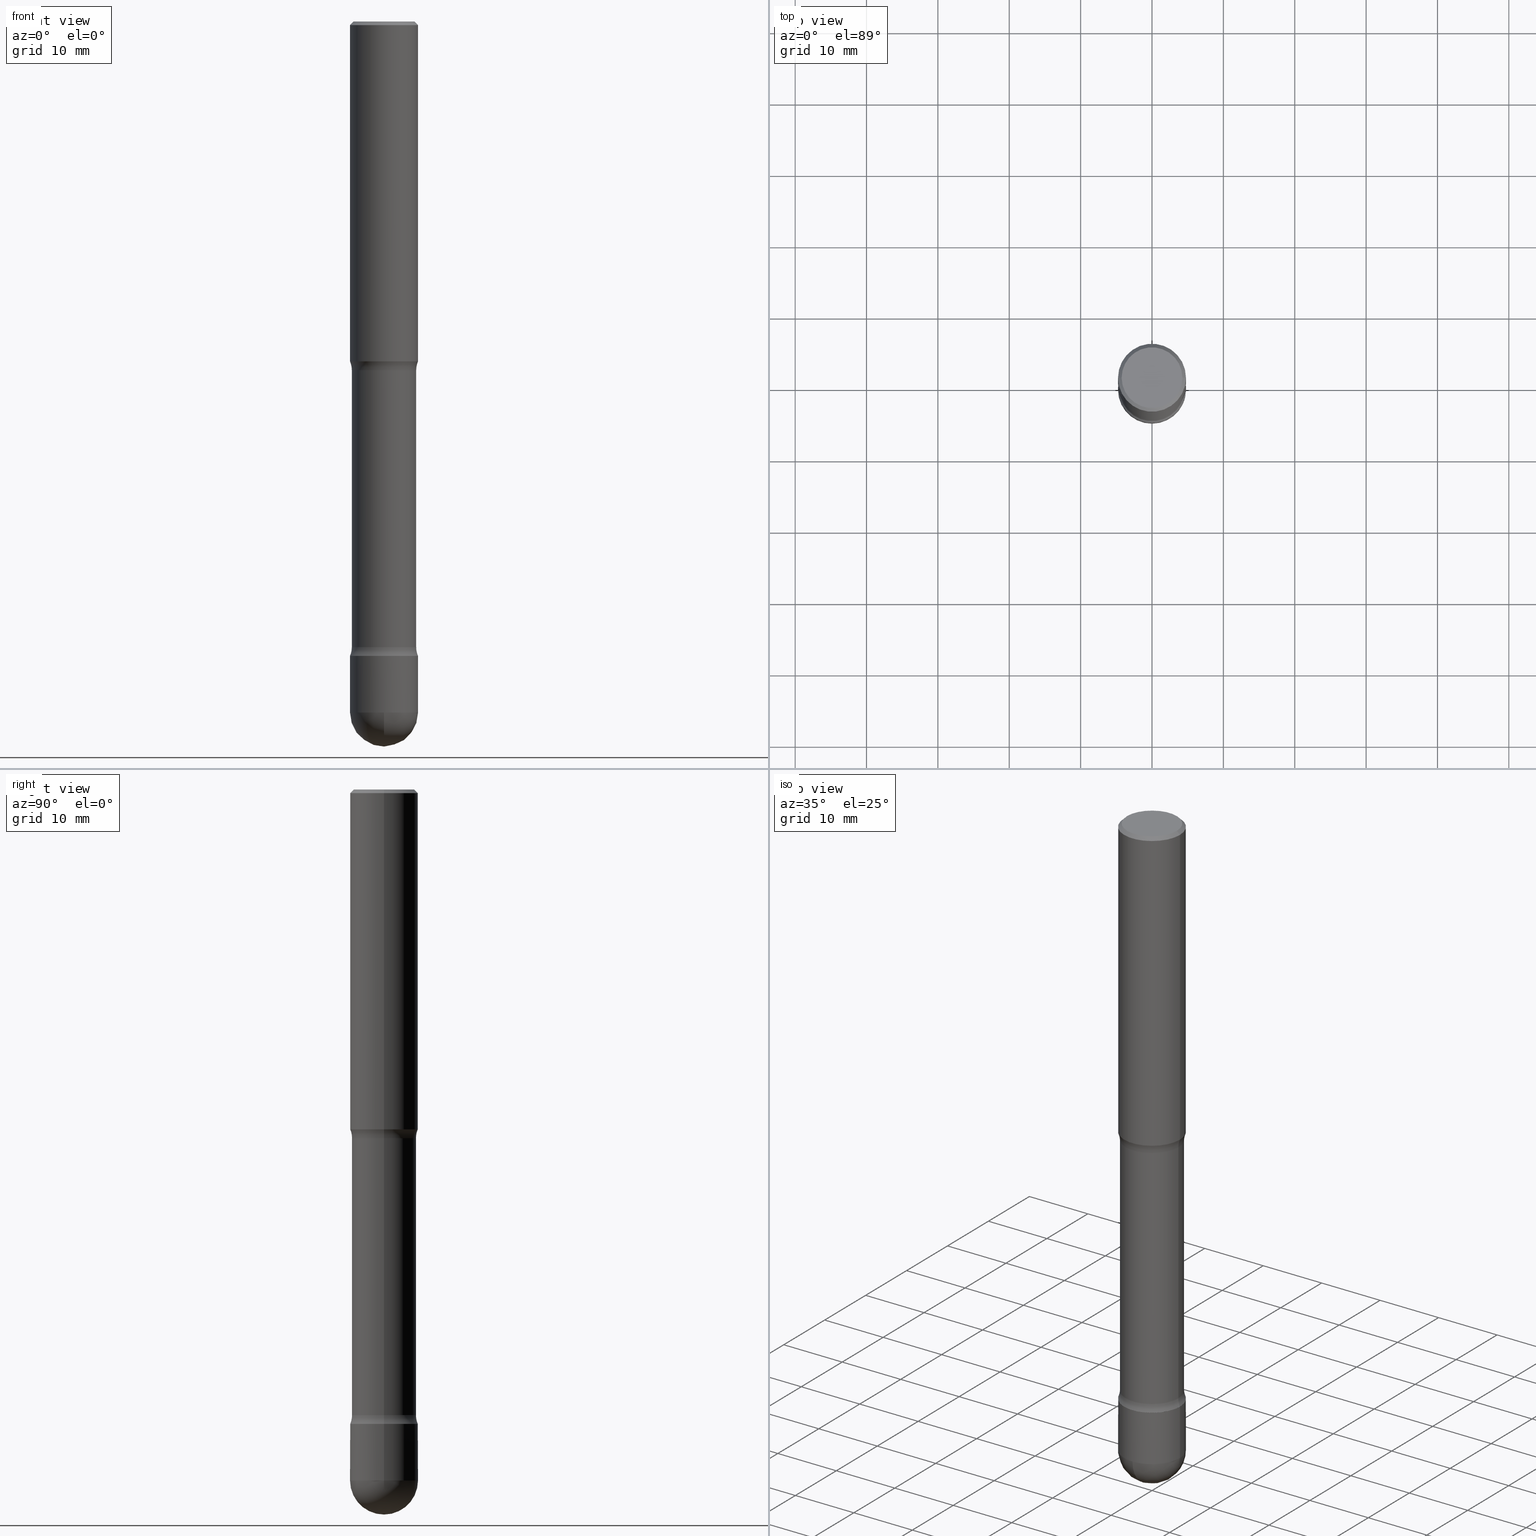
[diagram: canonical four-view strip — front | top / right | iso, engineering-drawing reading convention]
A machine part, canonical four-view strip (front | top / right | iso — engineering-drawing reading convention). The complete STEP part file that produces these views, byte-faithful:
ISO-10303-21;
HEADER;
FILE_DESCRIPTION (( 'STEP AP203' ),
    '1' );
FILE_NAME ('34944.STEP',
    '2024-02-29T19:23:34',
    ( '' ),
    ( '' ),
    'SwSTEP 2.0',
    'SolidWorks 2023',
    '' );
FILE_SCHEMA (( 'CONFIG_CONTROL_DESIGN' ));
ENDSEC;

DATA;
#1 = AXIS2_PLACEMENT_3D ( 'NONE', #479, #254, #519 ) ;
#2 = DIRECTION ( 'NONE',  ( -2.445468806185136597E-29, 3.491481338843145583E-15, 1.000000000000000000 ) ) ;
#3 = EDGE_LOOP ( 'NONE', ( #329, #7, #469, #181 ) ) ;
#4 = AXIS2_PLACEMENT_3D ( 'NONE', #85, #219, #262 ) ;
#5 = EDGE_CURVE ( 'NONE', #234, #528, #295, .T. ) ;
#6 = DIRECTION ( 'NONE',  ( -1.000000000000000000, 6.982962677686265133E-15, 0.000000000000000000 ) ) ;
#7 = ORIENTED_EDGE ( 'NONE', *, *, #277, .T. ) ;
#8 = DIRECTION ( 'NONE',  ( 2.445468806185136597E-29, -3.491481338843145583E-15, -1.000000000000000000 ) ) ;
#9 = ORIENTED_EDGE ( 'NONE', *, *, #511, .T. ) ;
#10 = DIRECTION ( 'NONE',  ( -1.000000000000000000, 6.982962677686265922E-15, -4.876176775795935793E-29 ) ) ;
#11 = AXIS2_PLACEMENT_3D ( 'NONE', #283, #417, #541 ) ;
#12 = ORIENTED_EDGE ( 'NONE', *, *, #270, .F. ) ;
#13 = PRODUCT_DEFINITION ( 'UNKNOWN', '', #439, #394 ) ;
#14 = CYLINDRICAL_SURFACE ( 'NONE', #38, 0.1874999999999999167 ) ;
#15 = DIRECTION ( 'NONE',  ( 1.000000000000000000, -6.982962677686265922E-15, 4.883557194083112340E-29 ) ) ;
#16 = EDGE_LOOP ( 'NONE', ( #189, #137, #482, #520 ) ) ;
#17 = APPLICATION_CONTEXT ( 'configuration controlled 3d designs of mechanical parts and assemblies' ) ;
#18 = CC_DESIGN_DATE_AND_TIME_ASSIGNMENT ( #34, #130, ( #144 ) ) ;
#19 = DIRECTION ( 'NONE',  ( -2.438088387897960049E-29, 3.491481338843145188E-15, 1.000000000000000000 ) ) ;
#20 = DIRECTION ( 'NONE',  ( -1.000000000000000000, 6.982962677686265922E-15, 0.000000000000000000 ) ) ;
#21 = AXIS2_PLACEMENT_3D ( 'NONE', #47, #364, #488 ) ;
#22 = CIRCLE ( 'NONE', #183, 0.1775000000000000189 ) ;
#23 = CARTESIAN_POINT ( 'NONE',  ( 4.705057026738065659E-29, -6.717574464863202053E-15, -1.923989794855663904 ) ) ;
#24 = CARTESIAN_POINT ( 'NONE',  ( 9.323349823580833275E-29, -1.331127260433949088E-14, -3.812500000000000000 ) ) ;
#25 = ADVANCED_FACE ( 'NONE', ( #422 ), #461, .T. ) ;
#26 = COORDINATED_UNIVERSAL_TIME_OFFSET ( 5, 0, .BEHIND. ) ;
#27 = FACE_OUTER_BOUND ( 'NONE', #276, .T. ) ;
#28 = ORIENTED_EDGE ( 'NONE', *, *, #231, .F. ) ;
#29 = EDGE_CURVE ( 'NONE', #340, #129, #374, .T. ) ;
#30 = CARTESIAN_POINT ( 'NONE',  ( 0.000000000000000000, 0.000000000000000000, 0.000000000000000000 ) ) ;
#31 = CIRCLE ( 'NONE', #499, 0.1875000000000000278 ) ;
#32 = DIRECTION ( 'NONE',  ( -2.445468806185136597E-29, 3.491481338843145583E-15, 1.000000000000000000 ) ) ;
#33 = EDGE_LOOP ( 'NONE', ( #445, #542, #146, #478 ) ) ;
#34 = DATE_AND_TIME ( #165, #325 ) ;
#35 = FACE_OUTER_BOUND ( 'NONE', #134, .T. ) ;
#36 = MANIFOLD_SOLID_BREP ( 'Body-Move/Copy2[1]', #532 ) ;
#37 = DIRECTION ( 'NONE',  ( -2.445468806185136597E-29, 3.491481338843145583E-15, 1.000000000000000000 ) ) ;
#38 = AXIS2_PLACEMENT_3D ( 'NONE', #108, #462, #20 ) ;
#39 = VERTEX_POINT ( 'NONE', #284 ) ;
#40 = CIRCLE ( 'NONE', #4, 0.1874999999999997780 ) ;
#41 = AXIS2_PLACEMENT_3D ( 'NONE', #30, #81, #465 ) ;
#42 = CARTESIAN_POINT ( 'NONE',  ( -0.1774999999999996025, -5.478098589573891921E-15, -1.923989794855663904 ) ) ;
#43 = DIRECTION ( 'NONE',  ( -1.000000000000000000, 6.982962677686269077E-15, 0.000000000000000000 ) ) ;
#44 = ORIENTED_EDGE ( 'NONE', *, *, #413, .F. ) ;
#45 = APPROVAL ( #560, 'UNSPECIFIED' ) ;
#46 = PERSON ( 'UNSPECIFIED', 'UNSPECIFIED', 'UNSPECIFIED', ('UNSPECIFIED'), ('UNSPECIFIED'), ('UNSPECIFIED') ) ;
#47 = CARTESIAN_POINT ( 'NONE',  ( 4.585254011597135603E-29, -6.546527510330903440E-15, -1.875000000000001776 ) ) ;
#48 = EDGE_LOOP ( 'NONE', ( #173, #362, #9, #495 ) ) ;
#49 = ADVANCED_FACE ( 'NONE', ( #548 ), #14, .T. ) ;
#50 = DIMENSIONAL_EXPONENTS ( 1.000000000000000000, 0.000000000000000000, 0.000000000000000000, 0.000000000000000000, 0.000000000000000000, 0.000000000000000000, 0.000000000000000000 ) ;
#51 = TOROIDAL_SURFACE ( 'NONE', #75, 0.3025000000000078182, 0.1250000000000078826 ) ;
#52 = ORIENTED_EDGE ( 'NONE', *, *, #416, .F. ) ;
#53 = DIRECTION ( 'NONE',  ( 2.445468806185136597E-29, -3.491481338843145583E-15, -1.000000000000000000 ) ) ;
#54 = VERTEX_POINT ( 'NONE', #540 ) ;
#55 = ADVANCED_FACE ( 'NONE', ( #498 ), #363, .F. ) ;
#56 = CARTESIAN_POINT ( 'NONE',  ( 8.559140821647976968E-29, -1.222018468595100934E-14, -3.500000000000000000 ) ) ;
#57 = ORIENTED_EDGE ( 'NONE', *, *, #70, .T. ) ;
#58 = FACE_OUTER_BOUND ( 'NONE', #517, .T. ) ;
#59 = ORGANIZATION ( 'UNSPECIFIED', 'UNSPECIFIED', '' ) ;
#60 = FACE_OUTER_BOUND ( 'NONE', #167, .T. ) ;
#61 = CARTESIAN_POINT ( 'NONE',  ( 9.859374669697428406E-29, -1.385494173919985124E-14, -4.000000000000000000 ) ) ;
#62 = EDGE_CURVE ( 'NONE', #105, #99, #333, .T. ) ;
#63 = DIRECTION ( 'NONE',  ( 1.000000000000000000, -6.982962677686265922E-15, 4.876176775795935793E-29 ) ) ;
#64 = ORIENTED_EDGE ( 'NONE', *, *, #110, .T. ) ;
#65 = CARTESIAN_POINT ( 'NONE',  ( -0.1874999999999997780, 1.239475875289311118E-15, -0.01999999999999978531 ) ) ;
#66 = CARTESIAN_POINT ( 'NONE',  ( 4.705057026738065659E-29, -6.717574464863202053E-15, -1.923989794855663904 ) ) ;
#67 = AXIS2_PLACEMENT_3D ( 'NONE', #533, #145, #43 ) ;
#68 = PERSON_AND_ORGANIZATION ( #46, #59 ) ;
#69 = DIRECTION ( 'NONE',  ( -1.000000000000000000, 6.982962677686266711E-15, -4.883557194083112340E-29 ) ) ;
#70 = EDGE_CURVE ( 'NONE', #123, #349, #113, .T. ) ;
#71 = DIRECTION ( 'NONE',  ( -1.000000000000000000, 6.982962677686269077E-15, 0.000000000000000000 ) ) ;
#72 = ORIENTED_EDGE ( 'NONE', *, *, #223, .T. ) ;
#73 = AXIS2_PLACEMENT_3D ( 'NONE', #203, #546, #502 ) ;
#74 = DIRECTION ( 'NONE',  ( -1.000000000000000000, 6.982962677686266711E-15, -4.883557194083112340E-29 ) ) ;
#75 = AXIS2_PLACEMENT_3D ( 'NONE', #237, #196, #169 ) ;
#76 = EDGE_LOOP ( 'NONE', ( #28, #375, #467, #316, #369 ) ) ;
#77 = AXIS2_PLACEMENT_3D ( 'NONE', #466, #291, #128 ) ;
#78 = AXIS2_PLACEMENT_3D ( 'NONE', #446, #53, #6 ) ;
#79 = CARTESIAN_POINT ( 'NONE',  ( 8.439337806507044109E-29, -1.204913773141870678E-14, -3.451010205144336762 ) ) ;
#80 = VERTEX_POINT ( 'NONE', #382 ) ;
#81 = DIRECTION ( 'NONE',  ( 0.000000000000000000, 0.000000000000000000, 1.000000000000000000 ) ) ;
#82 = FACE_OUTER_BOUND ( 'NONE', #76, .T. ) ;
#83 = CARTESIAN_POINT ( 'NONE',  ( 8.439337806507044109E-29, -1.204913773141870678E-14, -3.451010205144336762 ) ) ;
#84 = AXIS2_PLACEMENT_3D ( 'NONE', #330, #19, #63 ) ;
#85 = CARTESIAN_POINT ( 'NONE',  ( 4.890937612370220610E-31, -6.982962677686216421E-17, -0.01999999999999978531 ) ) ;
#86 = ORIENTED_EDGE ( 'NONE', *, *, #149, .F. ) ;
#87 = DIRECTION ( 'NONE',  ( -1.000000000000000000, 6.982962677686265133E-15, 0.000000000000000000 ) ) ;
#88 = ADVANCED_FACE ( 'NONE', ( #159 ), #353, .T. ) ;
#89 = ORIENTED_EDGE ( 'NONE', *, *, #235, .T. ) ;
#90 = CARTESIAN_POINT ( 'NONE',  ( 0.1874999999999999167, -1.350652806053316993E-14, -3.500000000000000000 ) ) ;
#91 = VERTEX_POINT ( 'NONE', #323 ) ;
#92 = TOROIDAL_SURFACE ( 'NONE', #419, 0.3025000000000078182, 0.1250000000000078826 ) ;
#93 = CIRCLE ( 'NONE', #216, 0.1249999999999882871 ) ;
#94 = FACE_OUTER_BOUND ( 'NONE', #227, .T. ) ;
#95 = ORIENTED_EDGE ( 'NONE', *, *, #228, .F. ) ;
#96 = AXIS2_PLACEMENT_3D ( 'NONE', #250, #245, #166 ) ;
#97 = CC_DESIGN_PERSON_AND_ORGANIZATION_ASSIGNMENT ( #514, #126, ( #144 ) ) ;
#98 = DIRECTION ( 'NONE',  ( -1.000000000000000000, 6.982962677686271444E-15, 0.000000000000000000 ) ) ;
#99 = VERTEX_POINT ( 'NONE', #243 ) ;
#100 = CYLINDRICAL_SURFACE ( 'NONE', #11, 0.1874999999999999167 ) ;
#101 = CARTESIAN_POINT ( 'NONE',  ( -0.1674999999999997602, 1.169646248512447820E-15, -8.167596099458180682E-30 ) ) ;
#102 = VECTOR ( 'NONE', #148, 39.37007874015748143 ) ;
#103 = DIRECTION ( 'NONE',  ( -1.000000000000000000, 6.860497997771528407E-15, 0.000000000000000000 ) ) ;
#104 = AXIS2_PLACEMENT_3D ( 'NONE', #547, #281, #326 ) ;
#105 = VERTEX_POINT ( 'NONE', #282 ) ;
#106 = VECTOR ( 'NONE', #309, 39.37007874015748143 ) ;
#107 = DIRECTION ( 'NONE',  ( -2.445468806185136597E-29, 3.491481338843145583E-15, 1.000000000000000000 ) ) ;
#108 = CARTESIAN_POINT ( 'NONE',  ( 8.559140821647976968E-29, -1.222018468595100934E-14, -3.500000000000000000 ) ) ;
#109 = EDGE_CURVE ( 'NONE', #54, #185, #114, .T. ) ;
#110 = EDGE_CURVE ( 'NONE', #484, #80, #457, .T. ) ;
#111 = CARTESIAN_POINT ( 'NONE',  ( 0.1873510749934464981, -1.350428058903573913E-14, -3.499648925006553224 ) ) ;
#112 = VERTEX_POINT ( 'NONE', #101 ) ;
#113 = CIRCLE ( 'NONE', #73, 0.1874999999999998335 ) ;
#114 = CIRCLE ( 'NONE', #523, 0.1874999999999996669 ) ;
#115 =( NAMED_UNIT ( * ) SI_UNIT ( $, .STERADIAN. ) SOLID_ANGLE_UNIT ( ) );
#116 = DIRECTION ( 'NONE',  ( -1.000000000000000000, 6.982962677686269077E-15, 0.000000000000000000 ) ) ;
#117 = CC_DESIGN_PERSON_AND_ORGANIZATION_ASSIGNMENT ( #68, #383, ( #480 ) ) ;
#118 = FACE_OUTER_BOUND ( 'NONE', #453, .T. ) ;
#119 = ORIENTED_EDGE ( 'NONE', *, *, #70, .F. ) ;
#120 = COORDINATED_UNIVERSAL_TIME_OFFSET ( 5, 0, .BEHIND. ) ;
#121 = DIRECTION ( 'NONE',  ( 2.445468806185136597E-29, -3.491481338843145583E-15, -1.000000000000000000 ) ) ;
#122 = APPROVAL ( #303, 'UNSPECIFIED' ) ;
#123 = VERTEX_POINT ( 'NONE', #61 ) ;
#124 = VECTOR ( 'NONE', #140, 39.37007874015748143 ) ;
#125 = AXIS2_PLACEMENT_3D ( 'NONE', #194, #558, #516 ) ;
#126 = PERSON_AND_ORGANIZATION_ROLE ( 'classification_officer' ) ;
#127 = VECTOR ( 'NONE', #351, 39.37007874015748143 ) ;
#128 = DIRECTION ( 'NONE',  ( 6.982962677686265922E-15, 1.000000000000000000, -2.913971193241883133E-15 ) ) ;
#129 = VERTEX_POINT ( 'NONE', #279 ) ;
#130 = DATE_TIME_ROLE ( 'classification_date' ) ;
#131 = DIRECTION ( 'NONE',  ( -6.982962677686266711E-15, -1.000000000000000000, 3.491481338843145583E-15 ) ) ;
#132 = EDGE_LOOP ( 'NONE', ( #306, #492 ) ) ;
#133 = DIRECTION ( 'NONE',  ( 2.445468806185136597E-29, -3.491481338843145583E-15, -1.000000000000000000 ) ) ;
#134 = EDGE_LOOP ( 'NONE', ( #141, #418, #486, #313 ) ) ;
#135 = ADVANCED_FACE ( 'NONE', ( #60 ), #51, .F. ) ;
#136 = DIRECTION ( 'NONE',  ( -0.7071067811868226860, 7.493145998871348125E-15, 0.7071067811862723484 ) ) ;
#137 = ORIENTED_EDGE ( 'NONE', *, *, #5, .F. ) ;
#138 = CARTESIAN_POINT ( 'NONE',  ( -0.1869999999999996387, -1.089146977007962318E-14, -3.500000000000000000 ) ) ;
#139 = EDGE_LOOP ( 'NONE', ( #269, #207, #258, #232 ) ) ;
#140 = DIRECTION ( 'NONE',  ( 2.445468806185136877E-29, -3.491481338843145188E-15, -1.000000000000000000 ) ) ;
#141 = ORIENTED_EDGE ( 'NONE', *, *, #328, .F. ) ;
#142 = AXIS2_PLACEMENT_3D ( 'NONE', #66, #464, #116 ) ;
#143 = CIRCLE ( 'NONE', #534, 0.1674999999999997602 ) ;
#144 = SECURITY_CLASSIFICATION ( '', '', #335 ) ;
#145 = DIRECTION ( 'NONE',  ( 2.445468806185136597E-29, -3.491481338843145583E-15, -1.000000000000000000 ) ) ;
#146 = ORIENTED_EDGE ( 'NONE', *, *, #218, .T. ) ;
#147 = DIRECTION ( 'NONE',  ( 6.860497997771531562E-15, 1.000000000000000000, -3.491481338843145583E-15 ) ) ;
#148 = DIRECTION ( 'NONE',  ( 2.445468806185136877E-29, -3.491481338843145188E-15, -1.000000000000000000 ) ) ;
#149 = EDGE_CURVE ( 'NONE', #192, #311, #386, .T. ) ;
#150 = DIRECTION ( 'NONE',  ( 1.000000000000000000, -6.982962677686265133E-15, 0.000000000000000000 ) ) ;
#151 = DIRECTION ( 'NONE',  ( 1.000000000000000000, -6.982962677686268288E-15, 0.000000000000000000 ) ) ;
#152 = ADVANCED_FACE ( 'NONE', ( #82 ), #172, .T. ) ;
#153 = CARTESIAN_POINT ( 'NONE',  ( -0.1774999999999998246, -1.098070881066169763E-14, -3.500000000000000000 ) ) ;
#154 = CIRCLE ( 'NONE', #249, 0.1874999999999996392 ) ;
#155 = CIRCLE ( 'NONE', #437, 0.1873510749934465536 ) ;
#156 = DIRECTION ( 'NONE',  ( 1.000000000000000000, -6.982962677686273021E-15, 0.000000000000000000 ) ) ;
#157 = CIRCLE ( 'NONE', #253, 0.1874999999999997780 ) ;
#158 = CARTESIAN_POINT ( 'NONE',  ( 1.305814020727414831E-15, 0.1869999999999874263, -3.500000000000000444 ) ) ;
#159 = FACE_OUTER_BOUND ( 'NONE', #443, .T. ) ;
#160 = ADVANCED_BREP_SHAPE_REPRESENTATION ( '34944', ( #36, #236, #41 ), #190 ) ;
#161 = CARTESIAN_POINT ( 'NONE',  ( 4.890937612370220610E-31, -6.982962677686216421E-17, -0.01999999999999978531 ) ) ;
#162 = APPROVAL_DATE_TIME ( #476, #45 ) ;
#163 = DIRECTION ( 'NONE',  ( 1.000000000000000000, -6.982962677686268288E-15, 0.000000000000000000 ) ) ;
#164 = LOCAL_TIME ( 14, 23, 34.00000000000000000, #256 ) ;
#165 = CALENDAR_DATE ( 2024, 29, 2 ) ;
#166 = DIRECTION ( 'NONE',  ( -1.000000000000000000, 6.982962677686265922E-15, 0.000000000000000000 ) ) ;
#167 = EDGE_LOOP ( 'NONE', ( #553, #263, #187, #504 ) ) ;
#168 = EDGE_CURVE ( 'NONE', #129, #440, #22, .T. ) ;
#169 = DIRECTION ( 'NONE',  ( -1.000000000000000000, 6.982962677686267499E-15, -4.883557194083113462E-29 ) ) ;
#170 = CALENDAR_DATE ( 2024, 29, 2 ) ;
#171 = ADVANCED_FACE ( 'NONE', ( #118 ), #436, .T. ) ;
#172 = CYLINDRICAL_SURFACE ( 'NONE', #356, 0.1874999999999996392 ) ;
#173 = ORIENTED_EDGE ( 'NONE', *, *, #62, .F. ) ;
#174 = CIRCLE ( 'NONE', #489, 0.1869999999999996387 ) ;
#175 = LOCAL_TIME ( 14, 23, 34.00000000000000000, #435 ) ;
#176 = PERSON_AND_ORGANIZATION_ROLE ( 'creator' ) ;
#177 = CYLINDRICAL_SURFACE ( 'NONE', #543, 0.1874999999999996392 ) ;
#178 = LINE ( 'NONE', #90, #106 ) ;
#179 = ADVANCED_FACE ( 'NONE', ( #27 ), #346, .T. ) ;
#180 = DIRECTION ( 'NONE',  ( 1.000000000000000000, -6.982962677686265133E-15, 0.000000000000000000 ) ) ;
#181 = ORIENTED_EDGE ( 'NONE', *, *, #377, .F. ) ;
#182 = APPROVAL_PERSON_ORGANIZATION ( #300, #122, #296 ) ;
#183 = AXIS2_PLACEMENT_3D ( 'NONE', #79, #477, #425 ) ;
#184 = CARTESIAN_POINT ( 'NONE',  ( -0.1869999999999996387, -1.088960961525404312E-14, -3.500000000000000000 ) ) ;
#185 = VERTEX_POINT ( 'NONE', #293 ) ;
#186 = CARTESIAN_POINT ( 'NONE',  ( 8.559140821647976968E-29, -1.222018468595100934E-14, -3.500000000000000000 ) ) ;
#187 = ORIENTED_EDGE ( 'NONE', *, *, #29, .T. ) ;
#188 = CARTESIAN_POINT ( 'NONE',  ( 8.439337806507040746E-29, -1.204913773141870205E-14, -3.451010205144335430 ) ) ;
#189 = ORIENTED_EDGE ( 'NONE', *, *, #475, .F. ) ;
#190 =( GEOMETRIC_REPRESENTATION_CONTEXT ( 3 ) GLOBAL_UNCERTAINTY_ASSIGNED_CONTEXT ( ( #317 ) ) GLOBAL_UNIT_ASSIGNED_CONTEXT ( ( #239, #378, #115 ) ) REPRESENTATION_CONTEXT ( 'NONE', 'WORKASPACE' ) );
#191 = CARTESIAN_POINT ( 'NONE',  ( 8.559140821647976968E-29, -1.222018468595100934E-14, -3.500000000000000000 ) ) ;
#192 = VERTEX_POINT ( 'NONE', #344 ) ;
#193 = CARTESIAN_POINT ( 'NONE',  ( 9.323349823580833275E-29, -1.331127260433949088E-14, -3.812500000000000000 ) ) ;
#194 = CARTESIAN_POINT ( 'NONE',  ( 8.559140821647976968E-29, -1.222018468595100934E-14, -3.500000000000000000 ) ) ;
#195 = ADVANCED_FACE ( 'NONE', ( #342 ), #177, .T. ) ;
#196 = DIRECTION ( 'NONE',  ( 2.445468806185136597E-29, -3.491481338843145583E-15, -1.000000000000000000 ) ) ;
#197 = AXIS2_PLACEMENT_3D ( 'NONE', #161, #415, #506 ) ;
#198 = DIRECTION ( 'NONE',  ( -0.7071067811865516806, 2.468850131082300448E-15, -0.7071067811865433539 ) ) ;
#199 = CIRCLE ( 'NONE', #287, 0.1249999999999882871 ) ;
#200 = AXIS2_PLACEMENT_3D ( 'NONE', #191, #494, #501 ) ;
#201 = DIRECTION ( 'NONE',  ( -2.445468806185136597E-29, 3.491481338843145583E-15, 1.000000000000000000 ) ) ;
#202 = CC_DESIGN_PERSON_AND_ORGANIZATION_ASSIGNMENT ( #518, #343, ( #439 ) ) ;
#203 = CARTESIAN_POINT ( 'NONE',  ( 9.392832084576658456E-29, -1.321177005190876857E-14, -3.812500000000000000 ) ) ;
#204 = DIRECTION ( 'NONE',  ( -2.445468806185136597E-29, 3.491481338843145583E-15, 1.000000000000000000 ) ) ;
#205 = CALENDAR_DATE ( 2024, 29, 2 ) ;
#206 = CARTESIAN_POINT ( 'NONE',  ( 4.585254011597135603E-29, -6.546527510330903440E-15, -1.875000000000001776 ) ) ;
#207 = ORIENTED_EDGE ( 'NONE', *, *, #334, .T. ) ;
#208 = PERSON_AND_ORGANIZATION ( #46, #59 ) ;
#209 = CARTESIAN_POINT ( 'NONE',  ( -0.1874999999999996392, 1.332267629550185285E-15, -9.223003294227931175E-30 ) ) ;
#210 = ORIENTED_EDGE ( 'NONE', *, *, #475, .T. ) ;
#211 = ADVANCED_FACE ( 'NONE', ( #434 ), #396, .T. ) ;
#212 = CYLINDRICAL_SURFACE ( 'NONE', #96, 0.1774999999999998246 ) ;
#213 = MECHANICAL_CONTEXT ( 'NONE', #357, 'mechanical' ) ;
#214 = ORIENTED_EDGE ( 'NONE', *, *, #310, .F. ) ;
#215 = AXIS2_PLACEMENT_3D ( 'NONE', #301, #556, #468 ) ;
#216 = AXIS2_PLACEMENT_3D ( 'NONE', #410, #147, #103 ) ;
#217 = DIRECTION ( 'NONE',  ( 2.445468806185136597E-29, -3.491481338843145583E-15, -1.000000000000000000 ) ) ;
#218 = EDGE_CURVE ( 'NONE', #440, #129, #222, .T. ) ;
#219 = DIRECTION ( 'NONE',  ( 2.445468806185136597E-29, -3.491481338843145583E-15, -1.000000000000000000 ) ) ;
#220 = ORIENTED_EDGE ( 'NONE', *, *, #109, .F. ) ;
#221 = ORIENTED_EDGE ( 'NONE', *, *, #442, .T. ) ;
#222 = CIRCLE ( 'NONE', #447, 0.1775000000000000189 ) ;
#223 = EDGE_CURVE ( 'NONE', #112, #105, #367, .T. ) ;
#224 = CC_DESIGN_APPROVAL ( #45, ( #439 ) ) ;
#225 = CIRCLE ( 'NONE', #470, 0.1874999999999996392 ) ;
#226 = DIRECTION ( 'NONE',  ( -1.000000000000000000, 6.982962677686265922E-15, -4.883557194083112901E-29 ) ) ;
#227 = EDGE_LOOP ( 'NONE', ( #355, #57, #365, #12 ) ) ;
#228 = EDGE_CURVE ( 'NONE', #234, #80, #199, .T. ) ;
#229 = CARTESIAN_POINT ( 'NONE',  ( 0.1774999999999998246, -1.343792308055545500E-14, -3.500000000000000000 ) ) ;
#230 = EDGE_LOOP ( 'NONE', ( #404, #537, #565, #246 ) ) ;
#231 = EDGE_CURVE ( 'NONE', #531, #91, #260, .T. ) ;
#232 = ORIENTED_EDGE ( 'NONE', *, *, #110, .F. ) ;
#233 = PLANE ( 'NONE',  #412 ) ;
#234 = VERTEX_POINT ( 'NONE', #42 ) ;
#235 = EDGE_CURVE ( 'NONE', #39, #80, #31, .T. ) ;
#236 = MANIFOLD_SOLID_BREP ( 'Body-Move/Copy2[2]', #352 ) ;
#237 = CARTESIAN_POINT ( 'NONE',  ( 8.439337806507040746E-29, -1.204913773141870205E-14, -3.451010205144335430 ) ) ;
#238 = ORIENTED_EDGE ( 'NONE', *, *, #109, .T. ) ;
#239 =( CONVERSION_BASED_UNIT ( 'INCH', #505 ) LENGTH_UNIT ( ) NAMED_UNIT ( #50 ) );
#240 = CIRCLE ( 'NONE', #559, 0.1873510749934465536 ) ;
#241 = ORIENTED_EDGE ( 'NONE', *, *, #235, .F. ) ;
#242 = DATE_TIME_ROLE ( 'creation_date' ) ;
#243 = CARTESIAN_POINT ( 'NONE',  ( 0.1874999999999997780, -1.356173001359022705E-15, -0.01999999999999978531 ) ) ;
#244 = APPROVAL_DATE_TIME ( #549, #302 ) ;
#245 = DIRECTION ( 'NONE',  ( 2.445468806185136597E-29, -3.491481338843145583E-15, -1.000000000000000000 ) ) ;
#246 = ORIENTED_EDGE ( 'NONE', *, *, #554, .F. ) ;
#247 = AXIS2_PLACEMENT_3D ( 'NONE', #286, #201, #151 ) ;
#248 = SHAPE_DEFINITION_REPRESENTATION ( #264, #160 ) ;
#249 = AXIS2_PLACEMENT_3D ( 'NONE', #430, #32, #390 ) ;
#250 = CARTESIAN_POINT ( 'NONE',  ( 8.559140821647976968E-29, -1.222018468595100934E-14, -3.500000000000000000 ) ) ;
#251 = CC_DESIGN_SECURITY_CLASSIFICATION ( #144, ( #439 ) ) ;
#252 = ADVANCED_FACE ( 'NONE', ( #507 ), #463, .F. ) ;
#253 = AXIS2_PLACEMENT_3D ( 'NONE', #563, #275, #87 ) ;
#254 = DIRECTION ( 'NONE',  ( 2.445468806185136597E-29, -3.491481338843145583E-15, -1.000000000000000000 ) ) ;
#255 = ORIENTED_EDGE ( 'NONE', *, *, #358, .T. ) ;
#256 = COORDINATED_UNIVERSAL_TIME_OFFSET ( 5, 0, .BEHIND. ) ;
#257 = CARTESIAN_POINT ( 'NONE',  ( 0.000000000000000000, 0.000000000000000000, 0.000000000000000000 ) ) ;
#258 = ORIENTED_EDGE ( 'NONE', *, *, #273, .F. ) ;
#259 = ADVANCED_FACE ( 'NONE', ( #35 ), #212, .T. ) ;
#260 = LINE ( 'NONE', #209, #271 ) ;
#261 = AXIS2_PLACEMENT_3D ( 'NONE', #193, #107, #150 ) ;
#262 = DIRECTION ( 'NONE',  ( -1.000000000000000000, 6.982962677686265133E-15, 0.000000000000000000 ) ) ;
#263 = ORIENTED_EDGE ( 'NONE', *, *, #455, .F. ) ;
#264 = PRODUCT_DEFINITION_SHAPE ( 'NONE', 'NONE',  #13 ) ;
#265 = LINE ( 'NONE', #452, #127 ) ;
#266 = ORIENTED_EDGE ( 'NONE', *, *, #334, .F. ) ;
#267 = EDGE_CURVE ( 'NONE', #91, #427, #154, .T. ) ;
#268 = CARTESIAN_POINT ( 'NONE',  ( -0.1873510749934464981, -1.091069334985921751E-14, -3.499648925006553224 ) ) ;
#269 = ORIENTED_EDGE ( 'NONE', *, *, #433, .T. ) ;
#270 = EDGE_CURVE ( 'NONE', #185, #531, #324, .T. ) ;
#271 = VECTOR ( 'NONE', #438, 39.37007874015748143 ) ;
#272 = DIRECTION ( 'NONE',  ( 6.982962677686265922E-15, 1.000000000000000000, -2.913971193241883133E-15 ) ) ;
#273 = EDGE_CURVE ( 'NONE', #80, #39, #421, .T. ) ;
#274 = ORIENTED_EDGE ( 'NONE', *, *, #433, .F. ) ;
#275 = DIRECTION ( 'NONE',  ( 2.445468806185136597E-29, -3.491481338843145583E-15, -1.000000000000000000 ) ) ;
#276 = EDGE_LOOP ( 'NONE', ( #388, #86, #522, #400 ) ) ;
#277 = EDGE_CURVE ( 'NONE', #311, #340, #361, .T. ) ;
#278 = DIRECTION ( 'NONE',  ( 2.445468806185136877E-29, -3.491481338843145188E-15, -1.000000000000000000 ) ) ;
#279 = CARTESIAN_POINT ( 'NONE',  ( -0.1775000000000000189, -1.080966185612939350E-14, -3.451010205144336762 ) ) ;
#280 = LOCAL_TIME ( 14, 23, 34.00000000000000000, #26 ) ;
#281 = DIRECTION ( 'NONE',  ( 6.860497997771531562E-15, 1.000000000000000000, -3.491481338843145583E-15 ) ) ;
#282 = CARTESIAN_POINT ( 'NONE',  ( 0.1674999999999997602, -1.252653207992876119E-15, 8.469775550109225372E-30 ) ) ;
#283 = CARTESIAN_POINT ( 'NONE',  ( 8.559140821647976968E-29, -1.222018468595100934E-14, -3.500000000000000000 ) ) ;
#284 = CARTESIAN_POINT ( 'NONE',  ( 0.1874999999999999722, -4.594521943136043171E-15, -1.875000000000001776 ) ) ;
#285 = LINE ( 'NONE', #153, #551 ) ;
#286 = CARTESIAN_POINT ( 'NONE',  ( 8.559140821647976968E-29, -1.222018468595100934E-14, -3.500000000000000000 ) ) ;
#287 = AXIS2_PLACEMENT_3D ( 'NONE', #473, #131, #304 ) ;
#288 = LOCAL_TIME ( 14, 23, 34.00000000000000000, #423 ) ;
#289 = CARTESIAN_POINT ( 'NONE',  ( -0.3025000000000078182, -9.936791521418551783E-15, -3.451010205144335430 ) ) ;
#290 = PERSON_AND_ORGANIZATION ( #46, #59 ) ;
#291 = DIRECTION ( 'NONE',  ( -1.000000000000000000, 6.982962677686265922E-15, -4.883557194083112901E-29 ) ) ;
#292 = ADVANCED_FACE ( 'NONE', ( #94 ), #402, .T. ) ;
#293 = CARTESIAN_POINT ( 'NONE',  ( 1.309305502066266713E-15, 0.1874999999999864830, -3.812500000000000444 ) ) ;
#294 = ORIENTED_EDGE ( 'NONE', *, *, #149, .T. ) ;
#295 = CIRCLE ( 'NONE', #142, 0.1774999999999996025 ) ;
#296 = APPROVAL_ROLE ( '' ) ;
#297 = AXIS2_PLACEMENT_3D ( 'NONE', #552, #121, #74 ) ;
#298 = CARTESIAN_POINT ( 'NONE',  ( 9.323349823580833275E-29, -1.331127260433949088E-14, -3.812500000000000000 ) ) ;
#299 = VECTOR ( 'NONE', #198, 39.37007874015748143 ) ;
#300 = PERSON_AND_ORGANIZATION ( #46, #59 ) ;
#301 = CARTESIAN_POINT ( 'NONE',  ( 8.559140821647976968E-29, -1.222018468595100934E-14, -3.500000000000000000 ) ) ;
#302 = APPROVAL ( #391, 'UNSPECIFIED' ) ;
#303 = APPROVAL_STATUS ( 'not_yet_approved' ) ;
#304 = DIRECTION ( 'NONE',  ( 1.000000000000000000, -6.982962677686264344E-15, 0.000000000000000000 ) ) ;
#305 = DIRECTION ( 'NONE',  ( -1.000000000000000000, 6.982962677686265922E-15, -4.876176775795935793E-29 ) ) ;
#306 = ORIENTED_EDGE ( 'NONE', *, *, #310, .T. ) ;
#307 = CARTESIAN_POINT ( 'NONE',  ( 9.392832084576658456E-29, -1.321177005190876857E-14, -3.812500000000000000 ) ) ;
#308 = ORIENTED_EDGE ( 'NONE', *, *, #526, .F. ) ;
#309 = DIRECTION ( 'NONE',  ( 2.445468806185136877E-29, -3.491481338843145188E-15, -1.000000000000000000 ) ) ;
#310 = EDGE_CURVE ( 'NONE', #427, #91, #225, .T. ) ;
#311 = VERTEX_POINT ( 'NONE', #184 ) ;
#312 = DIRECTION ( 'NONE',  ( -1.000000000000000000, 6.982962677686267499E-15, -4.883557194083113462E-29 ) ) ;
#313 = ORIENTED_EDGE ( 'NONE', *, *, #218, .F. ) ;
#314 = CIRCLE ( 'NONE', #67, 0.1774999999999996025 ) ;
#315 = DIRECTION ( 'NONE',  ( 2.445468806185136597E-29, -3.491481338843145583E-15, -1.000000000000000000 ) ) ;
#316 = ORIENTED_EDGE ( 'NONE', *, *, #413, .T. ) ;
#317 = UNCERTAINTY_MEASURE_WITH_UNIT (LENGTH_MEASURE( 1.000000000000000082E-05 ), #239, 'distance_accuracy_value', 'NONE');
#318 = ADVANCED_FACE ( 'NONE', ( #450 ), #474, .T. ) ;
#319 = LINE ( 'NONE', #65, #299 ) ;
#320 = EDGE_LOOP ( 'NONE', ( #448, #52 ) ) ;
#321 = FACE_OUTER_BOUND ( 'NONE', #132, .T. ) ;
#322 = VECTOR ( 'NONE', #460, 39.37007874015748143 ) ;
#323 = CARTESIAN_POINT ( 'NONE',  ( -0.1874999999999996392, -1.143346101559506542E-14, -3.500000000000000000 ) ) ;
#324 = CIRCLE ( 'NONE', #379, 0.1874999999999996669 ) ;
#325 = LOCAL_TIME ( 14, 23, 34.00000000000000000, #120 ) ;
#326 = DIRECTION ( 'NONE',  ( -1.000000000000000000, 6.860497997771532351E-15, 0.000000000000000000 ) ) ;
#327 = CIRCLE ( 'NONE', #472, 0.1874999999999998335 ) ;
#328 = EDGE_CURVE ( 'NONE', #528, #440, #527, .T. ) ;
#329 = ORIENTED_EDGE ( 'NONE', *, *, #358, .F. ) ;
#330 = CARTESIAN_POINT ( 'NONE',  ( 1.169646248512447820E-15, 0.1674999999999997602, -5.826888680111757675E-16 ) ) ;
#331 = DIRECTION ( 'NONE',  ( 2.445468806185136597E-29, -3.491481338843145583E-15, -1.000000000000000000 ) ) ;
#332 = CARTESIAN_POINT ( 'NONE',  ( 0.1774999999999996025, -7.884091872190356263E-15, -1.923989794855663904 ) ) ;
#333 = LINE ( 'NONE', #380, #322 ) ;
#334 = EDGE_CURVE ( 'NONE', #99, #39, #178, .T. ) ;
#335 = SECURITY_CLASSIFICATION_LEVEL ( 'unclassified' ) ;
#336 = CC_DESIGN_APPROVAL ( #302, ( #13 ) ) ;
#337 = DIRECTION ( 'NONE',  ( 1.000000000000000000, -6.982962677686267499E-15, 4.876176775795935232E-29 ) ) ;
#338 = EDGE_CURVE ( 'NONE', #531, #349, #513, .T. ) ;
#339 = DIRECTION ( 'NONE',  ( -2.445468806185136597E-29, 3.491481338843145583E-15, 1.000000000000000000 ) ) ;
#340 = VERTEX_POINT ( 'NONE', #268 ) ;
#341 = APPROVAL_ROLE ( '' ) ;
#342 = FACE_OUTER_BOUND ( 'NONE', #525, .T. ) ;
#343 = PERSON_AND_ORGANIZATION_ROLE ( 'design_supplier' ) ;
#344 = CARTESIAN_POINT ( 'NONE',  ( 0.1869999999999996387, -1.352661159257241509E-14, -3.500000000000000000 ) ) ;
#345 = CC_DESIGN_PERSON_AND_ORGANIZATION_ASSIGNMENT ( #424, #389, ( #439 ) ) ;
#346 = CONICAL_SURFACE ( 'NONE', #405, 0.1869999999999996387, 0.7853981633978374122 ) ;
#347 = CALENDAR_DATE ( 2024, 29, 2 ) ;
#348 = DIRECTION ( 'NONE',  ( 2.445468806185136597E-29, -3.491481338843145583E-15, -1.000000000000000000 ) ) ;
#349 = VERTEX_POINT ( 'NONE', #444 ) ;
#350 = ADVANCED_FACE ( 'NONE', ( #485 ), #92, .F. ) ;
#351 = DIRECTION ( 'NONE',  ( -2.445468806185136877E-29, 3.491481338843145188E-15, 1.000000000000000000 ) ) ;
#352 = CLOSED_SHELL ( 'NONE', ( #25, #350, #211, #252, #530, #88, #318, #49, #55, #259, #135, #179, #562, #538 ) ) ;
#353 = CONICAL_SURFACE ( 'NONE', #197, 0.1874999999999997780, 0.7853981633974541632 ) ;
#354 = DIRECTION ( 'NONE',  ( 2.445468806185136597E-29, -3.491481338843145583E-15, -1.000000000000000000 ) ) ;
#355 = ORIENTED_EDGE ( 'NONE', *, *, #442, .F. ) ;
#356 = AXIS2_PLACEMENT_3D ( 'NONE', #257, #512, #561 ) ;
#357 = APPLICATION_CONTEXT ( 'configuration controlled 3d designs of mechanical parts and assemblies' ) ;
#358 = EDGE_CURVE ( 'NONE', #311, #192, #174, .T. ) ;
#359 = CARTESIAN_POINT ( 'NONE',  ( 9.392832084576658456E-29, -1.321177005190876857E-14, -3.812500000000000000 ) ) ;
#360 = EDGE_LOOP ( 'NONE', ( #490, #210, #89, #95 ) ) ;
#361 = LINE ( 'NONE', #138, #544 ) ;
#362 = ORIENTED_EDGE ( 'NONE', *, *, #416, .T. ) ;
#363 = TOROIDAL_SURFACE ( 'NONE', #566, 0.3024999999999878897, 0.1249999999999882871 ) ;
#364 = DIRECTION ( 'NONE',  ( 2.445468806185136597E-29, -3.491481338843145583E-15, -1.000000000000000000 ) ) ;
#365 = ORIENTED_EDGE ( 'NONE', *, *, #338, .F. ) ;
#366 = EDGE_CURVE ( 'NONE', #535, #340, #240, .T. ) ;
#367 = CIRCLE ( 'NONE', #1, 0.1674999999999997602 ) ;
#368 = CARTESIAN_POINT ( 'NONE',  ( -0.1874999999999997780, 1.239475875289311118E-15, -0.01999999999999978531 ) ) ;
#369 = ORIENTED_EDGE ( 'NONE', *, *, #267, .F. ) ;
#370 = FACE_OUTER_BOUND ( 'NONE', #139, .T. ) ;
#371 = DIRECTION ( 'NONE',  ( -6.982962677686266711E-15, -1.000000000000000000, 3.491481338843145583E-15 ) ) ;
#372 = EDGE_CURVE ( 'NONE', #528, #234, #314, .T. ) ;
#373 = DIRECTION ( 'NONE',  ( -1.000000000000000000, 6.982962677686271444E-15, 0.000000000000000000 ) ) ;
#374 = CIRCLE ( 'NONE', #426, 0.1250000000000078826 ) ;
#375 = ORIENTED_EDGE ( 'NONE', *, *, #338, .T. ) ;
#376 = CIRCLE ( 'NONE', #104, 0.1250000000000078826 ) ;
#377 = EDGE_CURVE ( 'NONE', #192, #535, #491, .T. ) ;
#378 =( NAMED_UNIT ( * ) PLANE_ANGLE_UNIT ( ) SI_UNIT ( $, .RADIAN. ) );
#379 = AXIS2_PLACEMENT_3D ( 'NONE', #298, #392, #180 ) ;
#380 = CARTESIAN_POINT ( 'NONE',  ( 0.1874999999999997780, -1.356173001359022705E-15, -0.01999999999999978531 ) ) ;
#381 =( LENGTH_UNIT ( ) NAMED_UNIT ( * ) SI_UNIT ( $, .METRE. ) );
#382 = CARTESIAN_POINT ( 'NONE',  ( -0.1875000000000000278, -5.237222008264728432E-15, -1.875000000000001776 ) ) ;
#383 = PERSON_AND_ORGANIZATION_ROLE ( 'design_owner' ) ;
#384 = DIRECTION ( 'NONE',  ( 1.000000000000000000, -6.982962677686265133E-15, 0.000000000000000000 ) ) ;
#385 = DATE_AND_TIME ( #205, #288 ) ;
#386 = CIRCLE ( 'NONE', #125, 0.1869999999999996387 ) ;
#387 = CARTESIAN_POINT ( 'NONE',  ( 0.000000000000000000, 0.000000000000000000, 0.000000000000000000 ) ) ;
#388 = ORIENTED_EDGE ( 'NONE', *, *, #277, .F. ) ;
#389 = PERSON_AND_ORGANIZATION_ROLE ( 'creator' ) ;
#390 = DIRECTION ( 'NONE',  ( 1.000000000000000000, -6.982962677686266711E-15, 0.000000000000000000 ) ) ;
#391 = APPROVAL_STATUS ( 'not_yet_approved' ) ;
#392 = DIRECTION ( 'NONE',  ( -2.445468806185136597E-29, 3.491481338843145583E-15, 1.000000000000000000 ) ) ;
#393 = DATE_AND_TIME ( #170, #280 ) ;
#394 = DESIGN_CONTEXT ( 'detailed design', #17, 'design' ) ;
#395 = VECTOR ( 'NONE', #398, 39.37007874015748143 ) ;
#396 = CYLINDRICAL_SURFACE ( 'NONE', #215, 0.1774999999999998246 ) ;
#397 = CIRCLE ( 'NONE', #261, 0.1874999999999996669 ) ;
#398 = DIRECTION ( 'NONE',  ( 0.7071067811868226860, -2.468850131085139164E-15, 0.7071067811862723484 ) ) ;
#399 = DIRECTION ( 'NONE',  ( 1.000000000000000000, -6.982962677686266711E-15, 0.000000000000000000 ) ) ;
#400 = ORIENTED_EDGE ( 'NONE', *, *, #366, .T. ) ;
#401 = EDGE_CURVE ( 'NONE', #99, #484, #157, .T. ) ;
#402 = SPHERICAL_SURFACE ( 'NONE', #403, 0.1874999999999998335 ) ;
#403 = AXIS2_PLACEMENT_3D ( 'NONE', #359, #226, #272 ) ;
#404 = ORIENTED_EDGE ( 'NONE', *, *, #5, .T. ) ;
#405 = AXIS2_PLACEMENT_3D ( 'NONE', #508, #37, #163 ) ;
#406 = DIRECTION ( 'NONE',  ( -1.000000000000000000, 6.982962677686268288E-15, 0.000000000000000000 ) ) ;
#407 = ORIENTED_EDGE ( 'NONE', *, *, #231, .T. ) ;
#408 = DIRECTION ( 'NONE',  ( 1.000000000000000000, -6.982962677686265133E-15, 0.000000000000000000 ) ) ;
#409 = ORIENTED_EDGE ( 'NONE', *, *, #270, .T. ) ;
#410 = CARTESIAN_POINT ( 'NONE',  ( 0.3024999999999878897, -8.792875109189006321E-15, -1.923989794855663904 ) ) ;
#411 = ORIENTED_EDGE ( 'NONE', *, *, #401, .T. ) ;
#412 = AXIS2_PLACEMENT_3D ( 'NONE', #158, #414, #10 ) ;
#413 = EDGE_CURVE ( 'NONE', #54, #427, #265, .T. ) ;
#414 = DIRECTION ( 'NONE',  ( 2.438088387897960049E-29, -3.491481338843145188E-15, -1.000000000000000000 ) ) ;
#415 = DIRECTION ( 'NONE',  ( 2.445468806185136597E-29, -3.491481338843145583E-15, -1.000000000000000000 ) ) ;
#416 = EDGE_CURVE ( 'NONE', #105, #112, #143, .T. ) ;
#417 = DIRECTION ( 'NONE',  ( 2.445468806185136597E-29, -3.491481338843145583E-15, -1.000000000000000000 ) ) ;
#418 = ORIENTED_EDGE ( 'NONE', *, *, #372, .T. ) ;
#419 = AXIS2_PLACEMENT_3D ( 'NONE', #188, #354, #312 ) ;
#420 = CARTESIAN_POINT ( 'NONE',  ( 8.558282278702872312E-29, -1.221895891416285554E-14, -3.499648925006553224 ) ) ;
#421 = CIRCLE ( 'NONE', #21, 0.1875000000000000278 ) ;
#422 = FACE_OUTER_BOUND ( 'NONE', #3, .T. ) ;
#423 = COORDINATED_UNIVERSAL_TIME_OFFSET ( 5, 0, .BEHIND. ) ;
#424 = PERSON_AND_ORGANIZATION ( #46, #59 ) ;
#425 = DIRECTION ( 'NONE',  ( -1.000000000000000000, 6.982962677686269077E-15, 0.000000000000000000 ) ) ;
#426 = AXIS2_PLACEMENT_3D ( 'NONE', #289, #371, #156 ) ;
#427 = VERTEX_POINT ( 'NONE', #481 ) ;
#428 = PERSON_AND_ORGANIZATION ( #46, #59 ) ;
#429 = APPROVAL_PERSON_ORGANIZATION ( #290, #302, #341 ) ;
#430 = CARTESIAN_POINT ( 'NONE',  ( 8.559140821647976968E-29, -1.222018468595100934E-14, -3.500000000000000000 ) ) ;
#431 = AXIS2_PLACEMENT_3D ( 'NONE', #483, #529, #408 ) ;
#432 = ORIENTED_EDGE ( 'NONE', *, *, #62, .T. ) ;
#433 = EDGE_CURVE ( 'NONE', #484, #99, #40, .T. ) ;
#434 = FACE_OUTER_BOUND ( 'NONE', #230, .T. ) ;
#435 = COORDINATED_UNIVERSAL_TIME_OFFSET ( 5, 0, .BEHIND. ) ;
#436 = SPHERICAL_SURFACE ( 'NONE', #77, 0.1874999999999998335 ) ;
#437 = AXIS2_PLACEMENT_3D ( 'NONE', #420, #503, #373 ) ;
#438 = DIRECTION ( 'NONE',  ( -2.445468806185136877E-29, 3.491481338843145188E-15, 1.000000000000000000 ) ) ;
#439 = PRODUCT_DEFINITION_FORMATION_WITH_SPECIFIED_SOURCE ( 'ANY', '', #480, .NOT_KNOWN. ) ;
#440 = VERTEX_POINT ( 'NONE', #441 ) ;
#441 = CARTESIAN_POINT ( 'NONE',  ( 0.1775000000000000189, -1.060109449274539731E-14, -3.451010205144336762 ) ) ;
#442 = EDGE_CURVE ( 'NONE', #123, #185, #327, .T. ) ;
#443 = EDGE_LOOP ( 'NONE', ( #72, #432, #274, #451 ) ) ;
#444 = CARTESIAN_POINT ( 'NONE',  ( -1.332267629550092396E-15, -0.1875000000000130174, -3.812499999999999112 ) ) ;
#445 = ORIENTED_EDGE ( 'NONE', *, *, #366, .F. ) ;
#446 = CARTESIAN_POINT ( 'NONE',  ( 4.890937612370220610E-31, -6.982962677686216421E-17, -0.01999999999999978531 ) ) ;
#447 = AXIS2_PLACEMENT_3D ( 'NONE', #83, #348, #71 ) ;
#448 = ORIENTED_EDGE ( 'NONE', *, *, #223, .F. ) ;
#449 = CC_DESIGN_DATE_AND_TIME_ASSIGNMENT ( #393, #242, ( #13 ) ) ;
#450 = FACE_OUTER_BOUND ( 'NONE', #48, .T. ) ;
#451 = ORIENTED_EDGE ( 'NONE', *, *, #511, .F. ) ;
#452 = CARTESIAN_POINT ( 'NONE',  ( 0.1874999999999996392, -1.309305502066172642E-15, 9.142831454617361395E-30 ) ) ;
#453 = EDGE_LOOP ( 'NONE', ( #119, #221, #220, #308 ) ) ;
#454 = FACE_OUTER_BOUND ( 'NONE', #320, .T. ) ;
#455 = EDGE_CURVE ( 'NONE', #340, #535, #155, .T. ) ;
#456 = CARTESIAN_POINT ( 'NONE',  ( -0.1874999999999999167, -1.091087918388483433E-14, -3.500000000000000000 ) ) ;
#457 = LINE ( 'NONE', #456, #102 ) ;
#458 = EDGE_CURVE ( 'NONE', #535, #440, #376, .T. ) ;
#459 = PLANE ( 'NONE',  #84 ) ;
#460 = DIRECTION ( 'NONE',  ( 0.7071067811865516806, -7.319954787623270245E-15, -0.7071067811865433539 ) ) ;
#461 = CONICAL_SURFACE ( 'NONE', #247, 0.1869999999999996387, 0.7853981633978374122 ) ;
#462 = DIRECTION ( 'NONE',  ( 2.445468806185136597E-29, -3.491481338843145583E-15, -1.000000000000000000 ) ) ;
#463 = TOROIDAL_SURFACE ( 'NONE', #297, 0.3024999999999878897, 0.1249999999999882871 ) ;
#464 = DIRECTION ( 'NONE',  ( 2.445468806185136597E-29, -3.491481338843145583E-15, -1.000000000000000000 ) ) ;
#465 = DIRECTION ( 'NONE',  ( 1.000000000000000000, 0.000000000000000000, 0.000000000000000000 ) ) ;
#466 = CARTESIAN_POINT ( 'NONE',  ( 9.392832084576658456E-29, -1.321177005190876857E-14, -3.812500000000000000 ) ) ;
#467 = ORIENTED_EDGE ( 'NONE', *, *, #526, .T. ) ;
#468 = DIRECTION ( 'NONE',  ( -1.000000000000000000, 6.982962677686265922E-15, 0.000000000000000000 ) ) ;
#469 = ORIENTED_EDGE ( 'NONE', *, *, #455, .T. ) ;
#470 = AXIS2_PLACEMENT_3D ( 'NONE', #186, #2, #399 ) ;
#471 = APPROVAL_DATE_TIME ( #385, #122 ) ;
#472 = AXIS2_PLACEMENT_3D ( 'NONE', #307, #15, #536 ) ;
#473 = CARTESIAN_POINT ( 'NONE',  ( -0.3024999999999878897, -4.605228254863190623E-15, -1.923989794855663904 ) ) ;
#474 = CONICAL_SURFACE ( 'NONE', #78, 0.1874999999999997780, 0.7853981633974541632 ) ;
#475 = EDGE_CURVE ( 'NONE', #528, #39, #93, .T. ) ;
#476 = DATE_AND_TIME ( #347, #164 ) ;
#477 = DIRECTION ( 'NONE',  ( 2.445468806185136597E-29, -3.491481338843145583E-15, -1.000000000000000000 ) ) ;
#478 = ORIENTED_EDGE ( 'NONE', *, *, #29, .F. ) ;
#479 = CARTESIAN_POINT ( 'NONE',  ( 0.000000000000000000, 0.000000000000000000, 0.000000000000000000 ) ) ;
#480 = PRODUCT ( '34944', '34944', '', ( #213 ) ) ;
#481 = CARTESIAN_POINT ( 'NONE',  ( 0.1874999999999996392, -1.352949018801718119E-14, -3.500000000000000000 ) ) ;
#482 = ORIENTED_EDGE ( 'NONE', *, *, #228, .T. ) ;
#483 = CARTESIAN_POINT ( 'NONE',  ( 9.323349823580833275E-29, -1.331127260433949088E-14, -3.812500000000000000 ) ) ;
#484 = VERTEX_POINT ( 'NONE', #368 ) ;
#485 = FACE_OUTER_BOUND ( 'NONE', #33, .T. ) ;
#486 = ORIENTED_EDGE ( 'NONE', *, *, #554, .T. ) ;
#487 = PRODUCT_RELATED_PRODUCT_CATEGORY ( 'detail', '', ( #480 ) ) ;
#488 = DIRECTION ( 'NONE',  ( -1.000000000000000000, 6.982962677686266711E-15, 0.000000000000000000 ) ) ;
#489 = AXIS2_PLACEMENT_3D ( 'NONE', #56, #315, #406 ) ;
#490 = ORIENTED_EDGE ( 'NONE', *, *, #372, .F. ) ;
#491 = LINE ( 'NONE', #564, #395 ) ;
#492 = ORIENTED_EDGE ( 'NONE', *, *, #267, .T. ) ;
#493 = CC_DESIGN_PERSON_AND_ORGANIZATION_ASSIGNMENT ( #428, #176, ( #13 ) ) ;
#494 = DIRECTION ( 'NONE',  ( 2.438088387897960049E-29, -3.491481338843145188E-15, -1.000000000000000000 ) ) ;
#495 = ORIENTED_EDGE ( 'NONE', *, *, #401, .F. ) ;
#496 = ADVANCED_FACE ( 'NONE', ( #321 ), #539, .F. ) ;
#497 = CARTESIAN_POINT ( 'NONE',  ( -0.1874999999999996669, -1.143346101559506542E-14, -3.812500000000000000 ) ) ;
#498 = FACE_OUTER_BOUND ( 'NONE', #16, .T. ) ;
#499 = AXIS2_PLACEMENT_3D ( 'NONE', #206, #217, #550 ) ;
#500 = CC_DESIGN_APPROVAL ( #122, ( #144 ) ) ;
#501 = DIRECTION ( 'NONE',  ( -1.000000000000000000, 6.982962677686265922E-15, -4.876176775795935793E-29 ) ) ;
#502 = DIRECTION ( 'NONE',  ( -7.105427357601001070E-15, -1.000000000000000000, 0.000000000000000000 ) ) ;
#503 = DIRECTION ( 'NONE',  ( 2.445468806185136597E-29, -3.491481338843145583E-15, -1.000000000000000000 ) ) ;
#504 = ORIENTED_EDGE ( 'NONE', *, *, #168, .T. ) ;
#505 = LENGTH_MEASURE_WITH_UNIT ( LENGTH_MEASURE( 0.02539999999999999897 ), #381 );
#506 = DIRECTION ( 'NONE',  ( -1.000000000000000000, 6.982962677686265133E-15, 0.000000000000000000 ) ) ;
#507 = FACE_OUTER_BOUND ( 'NONE', #360, .T. ) ;
#508 = CARTESIAN_POINT ( 'NONE',  ( 8.559140821647976968E-29, -1.222018468595100934E-14, -3.500000000000000000 ) ) ;
#509 = EDGE_LOOP ( 'NONE', ( #266, #411, #64, #241 ) ) ;
#510 = APPROVAL_ROLE ( '' ) ;
#511 = EDGE_CURVE ( 'NONE', #112, #484, #319, .T. ) ;
#512 = DIRECTION ( 'NONE',  ( -2.445468806185136597E-29, 3.491481338843145583E-15, 1.000000000000000000 ) ) ;
#513 = CIRCLE ( 'NONE', #431, 0.1874999999999996669 ) ;
#514 = PERSON_AND_ORGANIZATION ( #46, #59 ) ;
#515 = APPROVAL_PERSON_ORGANIZATION ( #208, #45, #510 ) ;
#516 = DIRECTION ( 'NONE',  ( -1.000000000000000000, 6.982962677686268288E-15, 0.000000000000000000 ) ) ;
#517 = EDGE_LOOP ( 'NONE', ( #294, #255 ) ) ;
#518 = PERSON_AND_ORGANIZATION ( #46, #59 ) ;
#519 = DIRECTION ( 'NONE',  ( -1.000000000000000000, 6.982962677686265922E-15, -4.876176775795935793E-29 ) ) ;
#520 = ORIENTED_EDGE ( 'NONE', *, *, #273, .T. ) ;
#521 = CARTESIAN_POINT ( 'NONE',  ( 0.000000000000000000, 0.000000000000000000, 0.000000000000000000 ) ) ;
#522 = ORIENTED_EDGE ( 'NONE', *, *, #377, .T. ) ;
#523 = AXIS2_PLACEMENT_3D ( 'NONE', #24, #204, #384 ) ;
#524 = CARTESIAN_POINT ( 'NONE',  ( 8.558282278702872312E-29, -1.221895891416285554E-14, -3.499648925006553224 ) ) ;
#525 = EDGE_LOOP ( 'NONE', ( #409, #407, #214, #44, #238 ) ) ;
#526 = EDGE_CURVE ( 'NONE', #349, #54, #397, .T. ) ;
#527 = LINE ( 'NONE', #229, #124 ) ;
#528 = VERTEX_POINT ( 'NONE', #332 ) ;
#529 = DIRECTION ( 'NONE',  ( -2.445468806185136597E-29, 3.491481338843145583E-15, 1.000000000000000000 ) ) ;
#530 = ADVANCED_FACE ( 'NONE', ( #370 ), #100, .T. ) ;
#531 = VERTEX_POINT ( 'NONE', #497 ) ;
#532 = CLOSED_SHELL ( 'NONE', ( #195, #292, #171, #152, #496 ) ) ;
#533 = CARTESIAN_POINT ( 'NONE',  ( 4.705057026738065659E-29, -6.717574464863202053E-15, -1.923989794855663904 ) ) ;
#534 = AXIS2_PLACEMENT_3D ( 'NONE', #521, #133, #305 ) ;
#535 = VERTEX_POINT ( 'NONE', #111 ) ;
#536 = DIRECTION ( 'NONE',  ( 6.982962677686266711E-15, 1.000000000000000000, 0.000000000000000000 ) ) ;
#537 = ORIENTED_EDGE ( 'NONE', *, *, #328, .T. ) ;
#538 = ADVANCED_FACE ( 'NONE', ( #454 ), #459, .T. ) ;
#539 = PLANE ( 'NONE',  #200 ) ;
#540 = CARTESIAN_POINT ( 'NONE',  ( 0.1874999999999996669, -1.407503414721142196E-14, -3.812500000000000000 ) ) ;
#541 = DIRECTION ( 'NONE',  ( -1.000000000000000000, 6.982962677686265922E-15, 0.000000000000000000 ) ) ;
#542 = ORIENTED_EDGE ( 'NONE', *, *, #458, .T. ) ;
#543 = AXIS2_PLACEMENT_3D ( 'NONE', #387, #339, #337 ) ;
#544 = VECTOR ( 'NONE', #136, 39.37007874015748143 ) ;
#545 = APPLICATION_PROTOCOL_DEFINITION ( 'international standard', 'config_control_design', 1994, #357 ) ;
#546 = DIRECTION ( 'NONE',  ( -1.000000000000000000, 7.105427357601001070E-15, -4.926315508542082329E-29 ) ) ;
#547 = CARTESIAN_POINT ( 'NONE',  ( 0.3025000000000078182, -1.412443837574464437E-14, -3.451010205144335430 ) ) ;
#548 = FACE_OUTER_BOUND ( 'NONE', #509, .T. ) ;
#549 = DATE_AND_TIME ( #555, #175 ) ;
#550 = DIRECTION ( 'NONE',  ( -1.000000000000000000, 6.982962677686266711E-15, 0.000000000000000000 ) ) ;
#551 = VECTOR ( 'NONE', #278, 39.37007874015748143 ) ;
#552 = CARTESIAN_POINT ( 'NONE',  ( 4.705057026738065659E-29, -6.717574464863202053E-15, -1.923989794855663904 ) ) ;
#553 = ORIENTED_EDGE ( 'NONE', *, *, #458, .F. ) ;
#554 = EDGE_CURVE ( 'NONE', #234, #129, #285, .T. ) ;
#555 = CALENDAR_DATE ( 2024, 29, 2 ) ;
#556 = DIRECTION ( 'NONE',  ( 2.445468806185136597E-29, -3.491481338843145583E-15, -1.000000000000000000 ) ) ;
#557 = APPLICATION_PROTOCOL_DEFINITION ( 'international standard', 'config_control_design', 1994, #17 ) ;
#558 = DIRECTION ( 'NONE',  ( 2.445468806185136597E-29, -3.491481338843145583E-15, -1.000000000000000000 ) ) ;
#559 = AXIS2_PLACEMENT_3D ( 'NONE', #524, #8, #98 ) ;
#560 = APPROVAL_STATUS ( 'not_yet_approved' ) ;
#561 = DIRECTION ( 'NONE',  ( 1.000000000000000000, -6.982962677686267499E-15, 4.876176775795935232E-29 ) ) ;
#562 = ADVANCED_FACE ( 'NONE', ( #58 ), #233, .T. ) ;
#563 = CARTESIAN_POINT ( 'NONE',  ( 4.890937612370220610E-31, -6.982962677686216421E-17, -0.01999999999999978531 ) ) ;
#564 = CARTESIAN_POINT ( 'NONE',  ( 0.1869999999999996387, -1.352599870667833819E-14, -3.500000000000000000 ) ) ;
#565 = ORIENTED_EDGE ( 'NONE', *, *, #168, .F. ) ;
#566 = AXIS2_PLACEMENT_3D ( 'NONE', #23, #331, #69 ) ;
ENDSEC;
END-ISO-10303-21;
